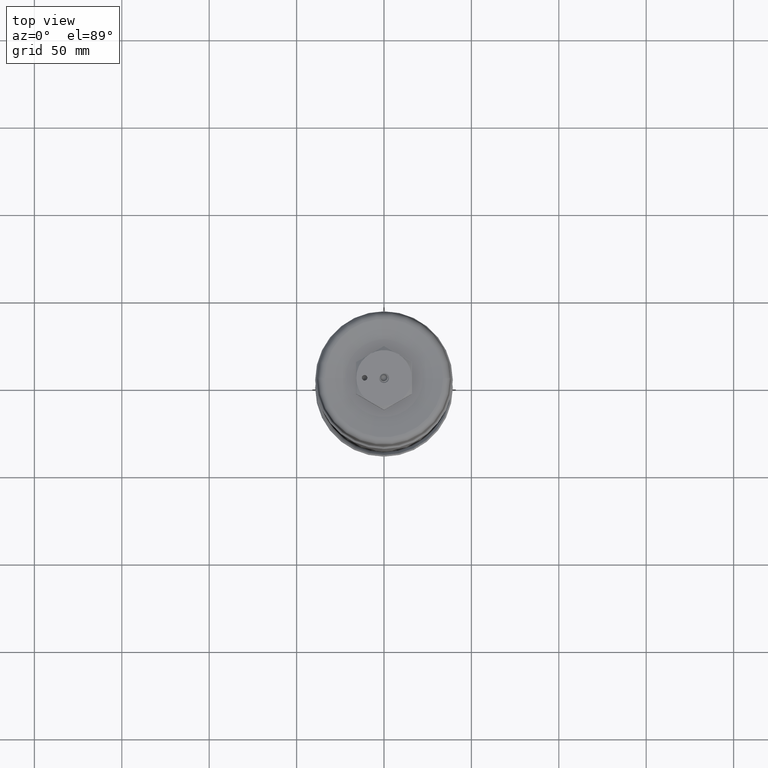
[diagram: clean part render]
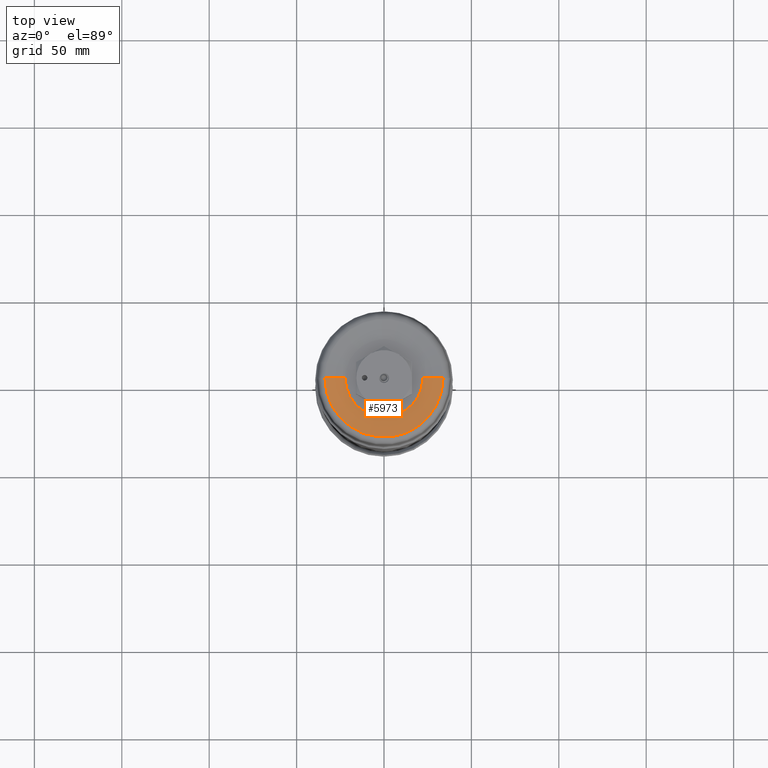
[diagram: same view with one face highlighted and labeled with its STEP entity id]
A machine part, top view. The second image highlights one B-rep face of the part: STEP entity #5973.
In plain terms, the highlighted conical surface has half-angle 82.262 deg.
Its self-contained STEP definition (entity closure, byte-faithful):
#1426 = CIRCLE ( 'NONE', #15199, 1.331253775764101600 ) ;
#1432 = CARTESIAN_POINT ( 'NONE',  ( 1.331253775764126700, -7.389942967363541900E-017, 0.1035000000000049500 ) ) ;
#1484 = CARTESIAN_POINT ( 'NONE',  ( 0.8750000000000268700, -4.857225732735862300E-017, 0.04150000000000377700 ) ) ;
#1608 = VERTEX_POINT ( 'NONE', #1484 ) ;
#1751 = AXIS2_PLACEMENT_3D ( 'NONE', #17168, #17222, #8556 ) ;
#1820 = DIRECTION ( 'NONE',  ( -0.9908929855085434300, 1.763550026726252100E-016, 0.1346517406867266700 ) ) ;
#2575 = LINE ( 'NONE', #16310, #9354 ) ;
#2822 = DIRECTION ( 'NONE',  ( 0.9908929855085424300, -5.500561037256465300E-017, 0.1346517406867338000 ) ) ;
#2859 = VERTEX_POINT ( 'NONE', #12653 ) ;
#4051 = VERTEX_POINT ( 'NONE', #15406 ) ;
#4937 = ORIENTED_EDGE ( 'NONE', *, *, #12428, .T. ) ;
#5973 = ADVANCED_FACE ( 'NONE', ( #9105 ), #12268, .F. ) ;
#6374 = CARTESIAN_POINT ( 'NONE',  ( 2.609319782168989200E-014, -1.219442083561424500E-015, 0.1035000000000003100 ) ) ;
#7045 = ORIENTED_EDGE ( 'NONE', *, *, #12505, .T. ) ;
#7829 = DIRECTION ( 'NONE',  ( -5.551115123125489300E-017, -1.000000000000000000, 0.0000000000000000000 ) ) ;
#8042 = DIRECTION ( 'NONE',  ( -3.615959338223850300E-015, 1.390815354352320200E-030, 1.000000000000000000 ) ) ;
#8556 = DIRECTION ( 'NONE',  ( 1.000000000000000000, -5.551115123126544400E-017, 3.616802578508583800E-015 ) ) ;
#9105 = FACE_OUTER_BOUND ( 'NONE', #11355, .T. ) ;
#9209 = ORIENTED_EDGE ( 'NONE', *, *, #9284, .F. ) ;
#9269 = LINE ( 'NONE', #11494, #16961 ) ;
#9284 = EDGE_CURVE ( 'NONE', #4051, #1608, #12064, .T. ) ;
#9354 = VECTOR ( 'NONE', #1820, 39.37007874015748100 ) ;
#10635 = ORIENTED_EDGE ( 'NONE', *, *, #17641, .F. ) ;
#11355 = EDGE_LOOP ( 'NONE', ( #9209, #4937, #7045, #10635 ) ) ;
#11494 = CARTESIAN_POINT ( 'NONE',  ( 1.331253775764230900, -7.389942967364115100E-017, 0.1035000000000190900 ) ) ;
#12064 = CIRCLE ( 'NONE', #17983, 0.8750000000000005600 ) ;
#12268 = CONICAL_SURFACE ( 'NONE', #1751, 1.331253775764204700, 1.435734332793960900 ) ;
#12428 = EDGE_CURVE ( 'NONE', #4051, #2859, #2575, .T. ) ;
#12505 = EDGE_CURVE ( 'NONE', #2859, #17646, #1426, .T. ) ;
#12653 = CARTESIAN_POINT ( 'NONE',  ( -1.331253775764076800, 2.369309972078667700E-016, 0.1034999999999956600 ) ) ;
#15199 = AXIS2_PLACEMENT_3D ( 'NONE', #6374, #16496, #7829 ) ;
#15406 = CARTESIAN_POINT ( 'NONE',  ( -0.8749999999999735800, 1.963299247303080500E-016, 0.04149999999999744200 ) ) ;
#16310 = CARTESIAN_POINT ( 'NONE',  ( -1.331253775764178500, 2.369309972078848100E-016, 0.1035000000000094600 ) ) ;
#16496 = DIRECTION ( 'NONE',  ( -3.491483361109390700E-015, 1.383905549562059800E-030, 1.000000000000000000 ) ) ;
#16709 = CARTESIAN_POINT ( 'NONE',  ( 2.631738730065977700E-014, -1.334281033442048700E-030, 0.04150000000000061300 ) ) ;
#16961 = VECTOR ( 'NONE', #2822, 39.37007874015748900 ) ;
#17168 = CARTESIAN_POINT ( 'NONE',  ( 2.609319782168984800E-014, -1.248050481472186100E-030, 0.1035000000000142800 ) ) ;
#17222 = DIRECTION ( 'NONE',  ( -3.615959338223850300E-015, 1.390815354352320200E-030, 1.000000000000000000 ) ) ;
#17641 = EDGE_CURVE ( 'NONE', #1608, #17646, #9269, .T. ) ;
#17646 = VERTEX_POINT ( 'NONE', #1432 ) ;
#17983 = AXIS2_PLACEMENT_3D ( 'NONE', #16709, #8042, #18182 ) ;
#18182 = DIRECTION ( 'NONE',  ( 1.000000000000000000, -5.551115123126544400E-017, 3.619698591605146800E-015 ) ) ;